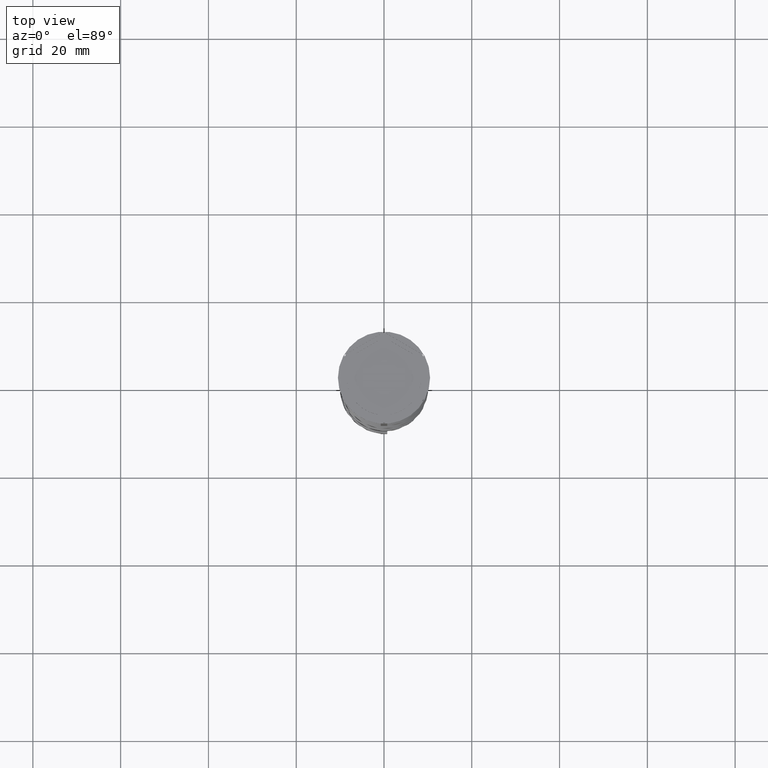
[diagram: clean part render]
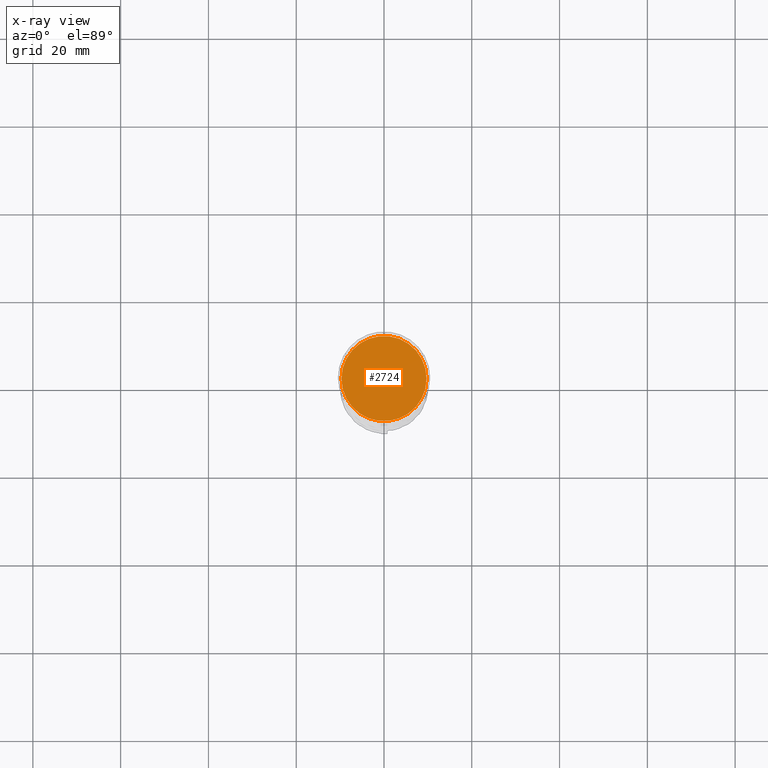
[diagram: x-ray — body ghosted, one internal face saturated and labeled with its STEP entity id]
A machine part, top view, then the same camera in x-ray: the body is ghosted and one INTERNAL B-rep face — a face not visible from any outside direction — is saturated and labeled: STEP entity #2724.
In plain terms, the highlighted planar face has unit normal (0, 0, -1).
Its self-contained STEP definition (entity closure, byte-faithful):
#16 = DIRECTION ( 'NONE',  ( 0.000000000000000000, 0.000000000000000000, -1.000000000000000000 ) ) ;
#340 = DIRECTION ( 'NONE',  ( -0.000000000000000000, -0.000000000000000000, 1.000000000000000000 ) ) ;
#349 = CARTESIAN_POINT ( 'NONE',  ( 0.000000000000000000, 0.000000000000000000, -12.00000000000000000 ) ) ;
#558 = EDGE_LOOP ( 'NONE', ( #2793, #3206 ) ) ;
#950 = PLANE ( 'NONE',  #1347 ) ;
#1347 = AXIS2_PLACEMENT_3D ( 'NONE', #349, #16, #2167 ) ;
#1479 = CIRCLE ( 'NONE', #2746, 9.700000000000002842 ) ;
#1542 = CIRCLE ( 'NONE', #1728, 9.700000000000002842 ) ;
#1579 = DIRECTION ( 'NONE',  ( -1.000000000000000000, 0.000000000000000000, 0.000000000000000000 ) ) ;
#1593 = CARTESIAN_POINT ( 'NONE',  ( -9.700000000000002842, 0.000000000000000000, -12.00000000000000000 ) ) ;
#1700 = VERTEX_POINT ( 'NONE', #2803 ) ;
#1725 = VERTEX_POINT ( 'NONE', #1593 ) ;
#1728 = AXIS2_PLACEMENT_3D ( 'NONE', #3075, #340, #1579 ) ;
#1750 = DIRECTION ( 'NONE',  ( -1.000000000000000000, 0.000000000000000000, 0.000000000000000000 ) ) ;
#2167 = DIRECTION ( 'NONE',  ( -1.000000000000000000, 0.000000000000000000, -0.000000000000000000 ) ) ;
#2373 = EDGE_CURVE ( 'NONE', #1700, #1725, #1542, .T. ) ;
#2724 = ADVANCED_FACE ( 'NONE', ( #3337 ), #950, .F. ) ;
#2746 = AXIS2_PLACEMENT_3D ( 'NONE', #3233, #3810, #1750 ) ;
#2793 = ORIENTED_EDGE ( 'NONE', *, *, #3144, .T. ) ;
#2803 = CARTESIAN_POINT ( 'NONE',  ( 9.700000000000002842, 1.206277097160143024E-15, -12.00000000000000000 ) ) ;
#3075 = CARTESIAN_POINT ( 'NONE',  ( 0.000000000000000000, 0.000000000000000000, -12.00000000000000000 ) ) ;
#3144 = EDGE_CURVE ( 'NONE', #1725, #1700, #1479, .T. ) ;
#3206 = ORIENTED_EDGE ( 'NONE', *, *, #2373, .T. ) ;
#3233 = CARTESIAN_POINT ( 'NONE',  ( 0.000000000000000000, 0.000000000000000000, -12.00000000000000000 ) ) ;
#3337 = FACE_OUTER_BOUND ( 'NONE', #558, .T. ) ;
#3810 = DIRECTION ( 'NONE',  ( -0.000000000000000000, -0.000000000000000000, 1.000000000000000000 ) ) ;